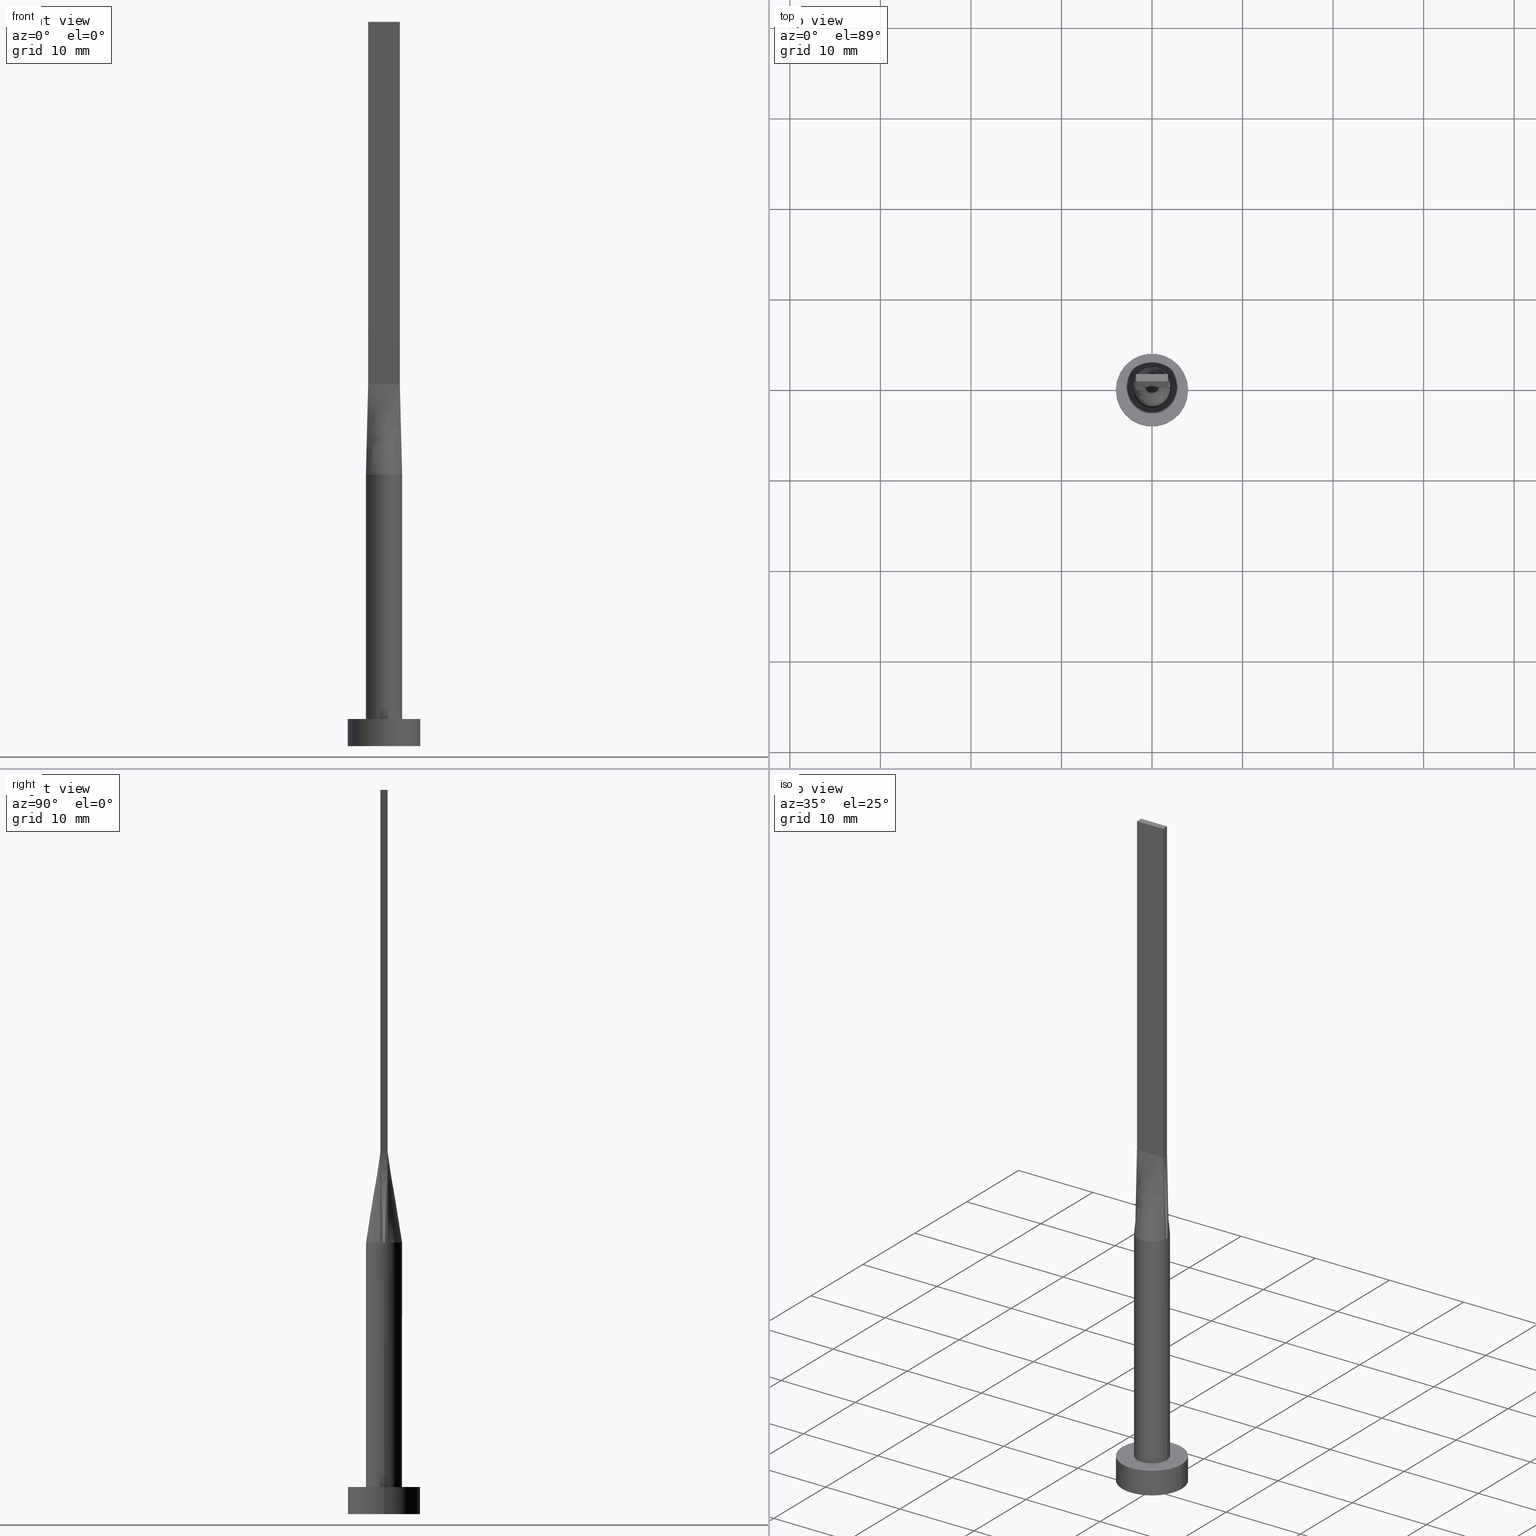
[diagram: canonical four-view strip — front | top / right | iso, engineering-drawing reading convention]
A machine part, canonical four-view strip (front | top / right | iso — engineering-drawing reading convention). The complete STEP part file that produces these views, byte-faithful:
ISO-10303-21;
HEADER;
FILE_DESCRIPTION (( 'STEP AP203' ),
    '1' );
FILE_NAME ('691f.STEP',
    '2026-02-12T09:07:20',
    ( '' ),
    ( '' ),
    'SwSTEP 2.0',
    'SolidWorks 2019',
    '' );
FILE_SCHEMA (( 'CONFIG_CONTROL_DESIGN' ));
ENDSEC;

DATA;
#1 = EDGE_CURVE ( 'NONE', #233, #190, #115, .T. ) ;
#2 = CARTESIAN_POINT ( 'NONE',  ( -1.949896596863728293, 0.4456908869437610776, 30.00000000000000000 ) ) ;
#3 = VERTEX_POINT ( 'NONE', #478 ) ;
#4 = PLANE ( 'NONE',  #78 ) ;
#5 = ORIENTED_EDGE ( 'NONE', *, *, #350, .F. ) ;
#6 = DIRECTION ( 'NONE',  ( 1.000000000000000000, 0.000000000000000000, -0.000000000000000000 ) ) ;
#7 = AXIS2_PLACEMENT_3D ( 'NONE', #482, #574, #221 ) ;
#8 = CC_DESIGN_APPROVAL ( #304, ( #397 ) ) ;
#9 = DIRECTION ( 'NONE',  ( -0.000000000000000000, -0.000000000000000000, -1.000000000000000000 ) ) ;
#10 = COORDINATED_UNIVERSAL_TIME_OFFSET ( 1, 0, .AHEAD. ) ;
#11 = FACE_OUTER_BOUND ( 'NONE', #65, .T. ) ;
#12 = DATE_AND_TIME ( #328, #223 ) ;
#13 = CC_DESIGN_PERSON_AND_ORGANIZATION_ASSIGNMENT ( #546, #272, ( #121 ) ) ;
#14 = DIRECTION ( 'NONE',  ( 1.000000000000000000, 0.000000000000000000, 0.000000000000000000 ) ) ;
#15 = DIRECTION ( 'NONE',  ( 0.000000000000000000, -0.000000000000000000, 1.000000000000000000 ) ) ;
#16 = CARTESIAN_POINT ( 'NONE',  ( 0.000000000000000000, 0.000000000000000000, 30.00000000000000000 ) ) ;
#17 = VERTEX_POINT ( 'NONE', #254 ) ;
#18 = CARTESIAN_POINT ( 'NONE',  ( 0.000000000000000000, 0.000000000000000000, 0.000000000000000000 ) ) ;
#19 = VECTOR ( 'NONE', #549, 1000.000000000000114 ) ;
#20 = CARTESIAN_POINT ( 'NONE',  ( 1.002818635501954603, 1.749193953526918088, 30.00000000000000000 ) ) ;
#21 = LOCAL_TIME ( 10, 7, 20.00000000000000000, #243 ) ;
#22 = FACE_OUTER_BOUND ( 'NONE', #33, .T. ) ;
#23 = DIRECTION ( 'NONE',  ( -0.000000000000000000, -0.000000000000000000, -1.000000000000000000 ) ) ;
#24 = EDGE_CURVE ( 'NONE', #323, #356, #30, .T. ) ;
#25 = EDGE_LOOP ( 'NONE', ( #476, #93, #238, #541 ) ) ;
#26 = CARTESIAN_POINT ( 'NONE',  ( 1.913513237607142647, 0.6040411209768705714, 30.00000000000000000 ) ) ;
#27 = DIRECTION ( 'NONE',  ( 0.000000000000000000, 0.000000000000000000, 1.000000000000000000 ) ) ;
#28 = ORIENTED_EDGE ( 'NONE', *, *, #528, .T. ) ;
#29 = VECTOR ( 'NONE', #430, 1000.000000000000000 ) ;
#30 = LINE ( 'NONE', #302, #47 ) ;
#31 = CARTESIAN_POINT ( 'NONE',  ( 0.000000000000000000, 0.000000000000000000, 30.00000000000000000 ) ) ;
#32 = VECTOR ( 'NONE', #524, 1000.000000000000000 ) ;
#33 = EDGE_LOOP ( 'NONE', ( #418, #218, #569, #448 ) ) ;
#34 = APPLICATION_CONTEXT ( 'configuration controlled 3d designs of mechanical parts and assemblies' ) ;
#35 = CARTESIAN_POINT ( 'NONE',  ( 1.669156890509896352, 1.119033439449084177, 29.99999999999999645 ) ) ;
#36 = EDGE_CURVE ( 'NONE', #190, #455, #249, .T. ) ;
#37 = ORIENTED_EDGE ( 'NONE', *, *, #307, .F. ) ;
#38 = LINE ( 'NONE', #571, #579 ) ;
#39 = VERTEX_POINT ( 'NONE', #339 ) ;
#40 = CARTESIAN_POINT ( 'NONE',  ( 4.000000000000000000, 4.898587196589412829E-16, 3.000000000000000000 ) ) ;
#41 = EDGE_CURVE ( 'NONE', #3, #222, #191, .T. ) ;
#42 = CARTESIAN_POINT ( 'NONE',  ( -1.749999999999999778, 0.4000000000000003553, 80.00000000000000000 ) ) ;
#43 = CARTESIAN_POINT ( 'NONE',  ( -0.1458333333333345638, -0.3999999999999997446, 40.00000000000000000 ) ) ;
#44 = ORIENTED_EDGE ( 'NONE', *, *, #540, .T. ) ;
#45 = CARTESIAN_POINT ( 'NONE',  ( -1.854458107241758746, 0.7741483657718513101, 30.00000000000000000 ) ) ;
#46 = CARTESIAN_POINT ( 'NONE',  ( 1.749999999999999778, 0.4000000000000003553, 40.00000000000000000 ) ) ;
#47 = VECTOR ( 'NONE', #467, 1000.000000000000000 ) ;
#48 = VECTOR ( 'NONE', #309, 1000.000000000000000 ) ;
#49 = DIRECTION ( 'NONE',  ( -0.000000000000000000, -0.000000000000000000, -1.000000000000000000 ) ) ;
#50 = DATE_AND_TIME ( #187, #21 ) ;
#51 = EDGE_CURVE ( 'NONE', #233, #39, #201, .T. ) ;
#52 = CARTESIAN_POINT ( 'NONE',  ( -1.166666666666667185, -0.3999999999999996891, 39.99999999999999289 ) ) ;
#53 = CARTESIAN_POINT ( 'NONE',  ( -4.000000000000000000, 0.000000000000000000, 3.000000000000000000 ) ) ;
#54 = EDGE_LOOP ( 'NONE', ( #327, #398, #37, #386, #494, #393 ) ) ;
#55 = CARTESIAN_POINT ( 'NONE',  ( 0.000000000000000000, 0.000000000000000000, 80.00000000000000000 ) ) ;
#56 = CARTESIAN_POINT ( 'NONE',  ( -1.750000000000000000, -0.3999999999999996891, 80.00000000000000000 ) ) ;
#57 = LINE ( 'NONE', #199, #165 ) ;
#58 = ADVANCED_FACE ( 'NONE', ( #330, #108 ), #558, .T. ) ;
#59 = ORIENTED_EDGE ( 'NONE', *, *, #273, .F. ) ;
#60 = LINE ( 'NONE', #109, #195 ) ;
#61 = EDGE_LOOP ( 'NONE', ( #143, #506 ) ) ;
#62 = CARTESIAN_POINT ( 'NONE',  ( -1.542259513637947999, 1.293837904363075442, 30.00000000000000355 ) ) ;
#63 = DATE_TIME_ROLE ( 'creation_date' ) ;
#64 = CARTESIAN_POINT ( 'NONE',  ( -1.749999999999999778, 0.4000000000000003553, 40.00000000000000000 ) ) ;
#65 = EDGE_LOOP ( 'NONE', ( #155, #522, #460, #411 ) ) ;
#66 = CYLINDRICAL_SURFACE ( 'NONE', #502, 2.000000000000000000 ) ;
#67 = DIRECTION ( 'NONE',  ( 0.000000000000000000, 0.000000000000000000, 1.000000000000000000 ) ) ;
#68 = EDGE_CURVE ( 'NONE', #220, #233, #107, .T. ) ;
#69 = ORIENTED_EDGE ( 'NONE', *, *, #572, .T. ) ;
#70 = CARTESIAN_POINT ( 'NONE',  ( 1.669156890509896574, -1.119033439449083733, 30.00000000000000000 ) ) ;
#71 = VERTEX_POINT ( 'NONE', #421 ) ;
#72 = DIRECTION ( 'NONE',  ( 0.01996751149463110026, -0.004564002627344216668, 0.9997902121768992290 ) ) ;
#73 = PERSON_AND_ORGANIZATION ( #548, #283 ) ;
#74 = CARTESIAN_POINT ( 'NONE',  ( -0.5833333333333340365, 0.4000000000000004108, 39.99999999999999289 ) ) ;
#75 = CARTESIAN_POINT ( 'NONE',  ( 0.5307032259479425029, -1.945168061822314831, 30.00000000000000355 ) ) ;
#76 = PLANE ( 'NONE',  #214 ) ;
#77 = ADVANCED_FACE ( 'NONE', ( #22 ), #261, .T. ) ;
#78 = AXIS2_PLACEMENT_3D ( 'NONE', #359, #181, #447 ) ;
#79 = DIRECTION ( 'NONE',  ( 0.000000000000000000, 0.000000000000000000, 1.000000000000000000 ) ) ;
#80 = PLANE ( 'NONE',  #125 ) ;
#81 = EDGE_CURVE ( 'NONE', #222, #3, #114, .T. ) ;
#82 = AXIS2_PLACEMENT_3D ( 'NONE', #31, #27, #210 ) ;
#83 = CARTESIAN_POINT ( 'NONE',  ( 1.002818635501954603, 1.749193953526918088, 30.00000000000000000 ) ) ;
#84 = AXIS2_PLACEMENT_3D ( 'NONE', #389, #269, #435 ) ;
#85 = DIRECTION ( 'NONE',  ( -2.710505431213761085E-16, 1.000000000000000000, -0.000000000000000000 ) ) ;
#86 = FACE_OUTER_BOUND ( 'NONE', #378, .T. ) ;
#87 = APPLICATION_CONTEXT ( 'configuration controlled 3d designs of mechanical parts and assemblies' ) ;
#88 = DIRECTION ( 'NONE',  ( -1.000000000000000000, -2.710505431213761085E-16, 0.000000000000000000 ) ) ;
#89 = CARTESIAN_POINT ( 'NONE',  ( -0.5307032259479425029, -1.945168061822315275, 30.00000000000000355 ) ) ;
#90 = ORIENTED_EDGE ( 'NONE', *, *, #98, .T. ) ;
#91 = DIRECTION ( 'NONE',  ( -0.000000000000000000, -0.000000000000000000, -1.000000000000000000 ) ) ;
#92 = CARTESIAN_POINT ( 'NONE',  ( -1.949896596863728293, 0.4456908869437610776, 30.00000000000000000 ) ) ;
#93 = ORIENTED_EDGE ( 'NONE', *, *, #167, .T. ) ;
#94 = PERSON_AND_ORGANIZATION_ROLE ( 'creator' ) ;
#95 = CARTESIAN_POINT ( 'NONE',  ( -1.913513237607142425, -0.6040411209768705714, 30.00000000000000000 ) ) ;
#96 = FACE_OUTER_BOUND ( 'NONE', #464, .T. ) ;
#97 = PERSON_AND_ORGANIZATION ( #548, #283 ) ;
#98 = EDGE_CURVE ( 'NONE', #498, #519, #265, .T. ) ;
#99 = CARTESIAN_POINT ( 'NONE',  ( 1.749999999999999778, -0.2666666666666663299, 39.99999999999999289 ) ) ;
#100 = ORIENTED_EDGE ( 'NONE', *, *, #1, .T. ) ;
#101 =( NAMED_UNIT ( * ) SI_UNIT ( $, .STERADIAN. ) SOLID_ANGLE_UNIT ( ) );
#102 = CARTESIAN_POINT ( 'NONE',  ( 0.000000000000000000, 0.000000000000000000, 3.000000000000000000 ) ) ;
#103 = PRODUCT_DEFINITION_FORMATION_WITH_SPECIFIED_SOURCE ( 'LIBOVOLN�', '', #256, .NOT_KNOWN. ) ;
#104 = FACE_OUTER_BOUND ( 'NONE', #54, .T. ) ;
#105 = CARTESIAN_POINT ( 'NONE',  ( -0.7291666666666672958, 0.4000000000000004108, 39.99999999999999289 ) ) ;
#106 = DIRECTION ( 'NONE',  ( 0.000000000000000000, 0.000000000000000000, 1.000000000000000000 ) ) ;
#107 = LINE ( 'NONE', #213, #137 ) ;
#108 = FACE_OUTER_BOUND ( 'NONE', #61, .T. ) ;
#109 = CARTESIAN_POINT ( 'NONE',  ( 2.000000000000000000, 2.449293598294706414E-16, 30.00000000000000000 ) ) ;
#110 = CARTESIAN_POINT ( 'NONE',  ( 0.000000000000000000, 0.000000000000000000, 30.00000000000000000 ) ) ;
#111 = EDGE_CURVE ( 'NONE', #360, #220, #326, .T. ) ;
#112 = ORIENTED_EDGE ( 'NONE', *, *, #521, .T. ) ;
#113 = CARTESIAN_POINT ( 'NONE',  ( -1.002818635501954381, 1.749193953526918532, 30.00000000000000000 ) ) ;
#114 = CIRCLE ( 'NONE', #518, 4.000000000000000000 ) ;
#115 = LINE ( 'NONE', #566, #29 ) ;
#116 = CARTESIAN_POINT ( 'NONE',  ( 0.5307032259479425029, 1.945168061822314165, 30.00000000000000000 ) ) ;
#117 = CARTESIAN_POINT ( 'NONE',  ( 0.1458333333333321213, -0.3999999999999997446, 39.99999999999999289 ) ) ;
#118 = ORIENTED_EDGE ( 'NONE', *, *, #111, .T. ) ;
#119 = CARTESIAN_POINT ( 'NONE',  ( -0.5307032259479420588, 1.945168061822314609, 30.00000000000000000 ) ) ;
#120 = APPROVAL_DATE_TIME ( #123, #304 ) ;
#121 = PRODUCT_DEFINITION ( 'NEZN�M�', '', #103, #473 ) ;
#122 = CARTESIAN_POINT ( 'NONE',  ( 1.749999999999999778, 0.4000000000000003553, 80.00000000000000000 ) ) ;
#123 = DATE_AND_TIME ( #253, #429 ) ;
#124 = CARTESIAN_POINT ( 'NONE',  ( 0.000000000000000000, 0.000000000000000000, 3.000000000000000000 ) ) ;
#125 = AXIS2_PLACEMENT_3D ( 'NONE', #122, #127, #179 ) ;
#126 = APPROVAL_PERSON_ORGANIZATION ( #501, #485, #399 ) ;
#127 = DIRECTION ( 'NONE',  ( 0.000000000000000000, -1.000000000000000000, 0.000000000000000000 ) ) ;
#128 = CC_DESIGN_DATE_AND_TIME_ASSIGNMENT ( #495, #63, ( #121 ) ) ;
#129 = CARTESIAN_POINT ( 'NONE',  ( 1.209404336647714073, 1.609323485403446830, 30.00000000000001066 ) ) ;
#130 = DIRECTION ( 'NONE',  ( 1.000000000000000000, -2.710505431213761085E-16, 0.000000000000000000 ) ) ;
#131 = CARTESIAN_POINT ( 'NONE',  ( -1.749999999999999778, -0.1333333333333329429, 39.99999999999999289 ) ) ;
#132 = CC_DESIGN_PERSON_AND_ORGANIZATION_ASSIGNMENT ( #508, #234, ( #256 ) ) ;
#133 = CARTESIAN_POINT ( 'NONE',  ( -1.750000000000000000, -0.3999999999999996891, 40.00000000000000000 ) ) ;
#134 = ORIENTED_EDGE ( 'NONE', *, *, #1, .F. ) ;
#135 =( NAMED_UNIT ( * ) PLANE_ANGLE_UNIT ( ) SI_UNIT ( $, .RADIAN. ) );
#136 = CARTESIAN_POINT ( 'NONE',  ( 1.982817607920046798, -0.3008345008579155211, 30.00000000000000000 ) ) ;
#137 = VECTOR ( 'NONE', #466, 1000.000000000000000 ) ;
#138 = EDGE_LOOP ( 'NONE', ( #112, #118, #563, #100 ) ) ;
#139 = VECTOR ( 'NONE', #9, 1000.000000000000000 ) ;
#140 = AXIS2_PLACEMENT_3D ( 'NONE', #189, #49, #396 ) ;
#141 = CC_DESIGN_APPROVAL ( #555, ( #121 ) ) ;
#142 = CARTESIAN_POINT ( 'NONE',  ( 1.949717013143734690, -0.4456496030042819689, 30.00000000000000000 ) ) ;
#143 = ORIENTED_EDGE ( 'NONE', *, *, #41, .T. ) ;
#144 = EDGE_CURVE ( 'NONE', #423, #323, #452, .T. ) ;
#145 = DIRECTION ( 'NONE',  ( 2.710505431213761085E-16, -1.000000000000000000, 0.000000000000000000 ) ) ;
#146 = CARTESIAN_POINT ( 'NONE',  ( -1.002818635501955047, -1.749193953526917866, 30.00000000000000355 ) ) ;
#147 = CARTESIAN_POINT ( 'NONE',  ( 0.000000000000000000, 0.000000000000000000, 0.000000000000000000 ) ) ;
#148 = PLANE ( 'NONE',  #483 ) ;
#149 = CARTESIAN_POINT ( 'NONE',  ( 1.749999999999999778, 0.4000000000000003553, 80.00000000000000000 ) ) ;
#150 = EDGE_LOOP ( 'NONE', ( #349, #262, #329, #334 ) ) ;
#151 = MECHANICAL_CONTEXT ( 'NONE', #34, 'mechanical' ) ;
#152 = DIRECTION ( 'NONE',  ( -0.000000000000000000, -0.000000000000000000, -1.000000000000000000 ) ) ;
#153 = CARTESIAN_POINT ( 'NONE',  ( 0.000000000000000000, 0.000000000000000000, 0.000000000000000000 ) ) ;
#154 = CARTESIAN_POINT ( 'NONE',  ( 1.020833333333332371, -0.3999999999999997446, 39.99999999999999289 ) ) ;
#155 = ORIENTED_EDGE ( 'NONE', *, *, #385, .T. ) ;
#156 = CARTESIAN_POINT ( 'NONE',  ( 1.949877516600953875, 0.4456865912299994847, 30.00000000000000000 ) ) ;
#157 = ORIENTED_EDGE ( 'NONE', *, *, #41, .F. ) ;
#158 = CARTESIAN_POINT ( 'NONE',  ( -1.749999999999999778, 0.4000000000000003553, 80.00000000000000000 ) ) ;
#159 = CARTESIAN_POINT ( 'NONE',  ( -1.949717013143734690, -0.4456496030042821355, 30.00000000000000000 ) ) ;
#160 = CARTESIAN_POINT ( 'NONE',  ( 1.749999999999999778, 0.4000000000000003553, 80.00000000000000000 ) ) ;
#161 = ORIENTED_EDGE ( 'NONE', *, *, #496, .T. ) ;
#162 = CARTESIAN_POINT ( 'NONE',  ( 1.166666666666665630, 0.4000000000000003553, 39.99999999999999289 ) ) ;
#163 = ORIENTED_EDGE ( 'NONE', *, *, #324, .F. ) ;
#164 = CIRCLE ( 'NONE', #295, 4.000000000000000000 ) ;
#165 = VECTOR ( 'NONE', #368, 1000.000000000000000 ) ;
#166 = CARTESIAN_POINT ( 'NONE',  ( 1.542259513637948443, 1.293837904363074998, 30.00000000000000711 ) ) ;
#167 = EDGE_CURVE ( 'NONE', #423, #525, #463, .T. ) ;
#168 = ORIENTED_EDGE ( 'NONE', *, *, #367, .F. ) ;
#169 = CARTESIAN_POINT ( 'NONE',  ( -0.2657394870669756437, 1.999999999999999556, 30.00000000000000000 ) ) ;
#170 = DIRECTION ( 'NONE',  ( 0.000000000000000000, 0.000000000000000000, 1.000000000000000000 ) ) ;
#171 = ORIENTED_EDGE ( 'NONE', *, *, #51, .T. ) ;
#172 = ADVANCED_FACE ( 'NONE', ( #291 ), #66, .T. ) ;
#173 = CARTESIAN_POINT ( 'NONE',  ( -1.002818635501954381, 1.749193953526918532, 30.00000000000000000 ) ) ;
#174 = CIRCLE ( 'NONE', #353, 2.000000000000000000 ) ;
#175 = ORIENTED_EDGE ( 'NONE', *, *, #391, .T. ) ;
#176 = VECTOR ( 'NONE', #91, 1000.000000000000000 ) ;
#177 = CARTESIAN_POINT ( 'NONE',  ( 1.949877516600953875, 0.4456865912299994847, 30.00000000000000000 ) ) ;
#178 = CARTESIAN_POINT ( 'NONE',  ( -0.2657394870669760878, -2.000000000000000000, 30.00000000000000355 ) ) ;
#179 = DIRECTION ( 'NONE',  ( 0.000000000000000000, -0.000000000000000000, -1.000000000000000000 ) ) ;
#180 = CIRCLE ( 'NONE', #182, 2.000000000000000000 ) ;
#181 = DIRECTION ( 'NONE',  ( 0.000000000000000000, 0.000000000000000000, 1.000000000000000000 ) ) ;
#182 = AXIS2_PLACEMENT_3D ( 'NONE', #562, #461, #419 ) ;
#183 = CC_DESIGN_APPROVAL ( #485, ( #103 ) ) ;
#184 = EDGE_CURVE ( 'NONE', #519, #550, #180, .T. ) ;
#185 = CARTESIAN_POINT ( 'NONE',  ( -1.999367905308203186, 0.1504172504289580936, 30.00000000000000000 ) ) ;
#186 = ORIENTED_EDGE ( 'NONE', *, *, #144, .F. ) ;
#187 = CALENDAR_DATE ( 2026, 12, 2 ) ;
#188 = CARTESIAN_POINT ( 'NONE',  ( -1.604166666666666963, -0.3999999999999996891, 39.99999999999999289 ) ) ;
#189 = CARTESIAN_POINT ( 'NONE',  ( 0.000000000000000000, 0.000000000000000000, 3.000000000000000000 ) ) ;
#190 = VERTEX_POINT ( 'NONE', #149 ) ;
#191 = CIRCLE ( 'NONE', #380, 4.000000000000000000 ) ;
#192 = CARTESIAN_POINT ( 'NONE',  ( 4.000000000000000000, 4.898587196589412829E-16, 0.000000000000000000 ) ) ;
#193 = CLOSED_SHELL ( 'NONE', ( #172, #344, #427, #58, #375, #480, #77, #434, #408, #211, #294, #236, #533, #442, #577 ) ) ;
#194 = ORIENTED_EDGE ( 'NONE', *, *, #572, .F. ) ;
#195 = VECTOR ( 'NONE', #244, 1000.000000000000000 ) ;
#196 = CARTESIAN_POINT ( 'NONE',  ( -1.949717013143734690, -0.4456496030042821355, 30.00000000000000000 ) ) ;
#197 = EDGE_LOOP ( 'NONE', ( #90, #433, #559, #530, #474 ) ) ;
#198 = SECURITY_CLASSIFICATION_LEVEL ( 'unclassified' ) ;
#199 = CARTESIAN_POINT ( 'NONE',  ( -1.749999999999999778, 0.4000000000000003553, 40.00000000000000000 ) ) ;
#200 = CARTESIAN_POINT ( 'NONE',  ( 4.000000000000000000, 4.898587196589412829E-16, 3.000000000000000000 ) ) ;
#201 = LINE ( 'NONE', #554, #228 ) ;
#202 = DIRECTION ( 'NONE',  ( -0.000000000000000000, -0.000000000000000000, -1.000000000000000000 ) ) ;
#203 = CARTESIAN_POINT ( 'NONE',  ( 1.209404336647714073, 1.609323485403446830, 30.00000000000001066 ) ) ;
#204 = PRODUCT_RELATED_PRODUCT_CATEGORY ( 'detail', '', ( #256 ) ) ;
#205 = APPROVAL_PERSON_ORGANIZATION ( #73, #304, #420 ) ;
#206 = CARTESIAN_POINT ( 'NONE',  ( -4.000000000000000000, 0.000000000000000000, 0.000000000000000000 ) ) ;
#207 = CARTESIAN_POINT ( 'NONE',  ( -0.1458333333333341753, 0.4000000000000004108, 39.99999999999999289 ) ) ;
#208 = SHAPE_DEFINITION_REPRESENTATION ( #553, #517 ) ;
#209 = CARTESIAN_POINT ( 'NONE',  ( 1.166666666666665853, -0.3999999999999997446, 39.99999999999999289 ) ) ;
#210 = DIRECTION ( 'NONE',  ( 1.000000000000000000, -9.769962616701377556E-15, 0.000000000000000000 ) ) ;
#211 = ADVANCED_FACE ( 'NONE', ( #468 ), #300, .T. ) ;
#212 = AXIS2_PLACEMENT_3D ( 'NONE', #110, #513, #426 ) ;
#213 = CARTESIAN_POINT ( 'NONE',  ( -1.750000000000000000, -0.3999999999999996891, 80.00000000000000000 ) ) ;
#214 = AXIS2_PLACEMENT_3D ( 'NONE', #345, #130, #432 ) ;
#215 = DIRECTION ( 'NONE',  ( 0.000000000000000000, 0.000000000000000000, 1.000000000000000000 ) ) ;
#216 = CARTESIAN_POINT ( 'NONE',  ( -1.542259513637947999, 1.293837904363075442, 30.00000000000000355 ) ) ;
#217 = ORIENTED_EDGE ( 'NONE', *, *, #81, .F. ) ;
#218 = ORIENTED_EDGE ( 'NONE', *, *, #400, .T. ) ;
#219 = CARTESIAN_POINT ( 'NONE',  ( 1.750000000000000000, -0.3999999999999996891, 80.00000000000000000 ) ) ;
#220 = VERTEX_POINT ( 'NONE', #531 ) ;
#221 = DIRECTION ( 'NONE',  ( 1.000000000000000000, 0.000000000000000000, 0.000000000000000000 ) ) ;
#222 = VERTEX_POINT ( 'NONE', #40 ) ;
#223 = LOCAL_TIME ( 10, 7, 20.00000000000000000, #10 ) ;
#224 = CARTESIAN_POINT ( 'NONE',  ( -1.458333333333333703, 0.4000000000000004108, 39.99999999999999289 ) ) ;
#225 = ORIENTED_EDGE ( 'NONE', *, *, #184, .F. ) ;
#226 = CYLINDRICAL_SURFACE ( 'NONE', #140, 4.000000000000000000 ) ;
#227 = EDGE_CURVE ( 'NONE', #356, #71, #174, .T. ) ;
#228 = VECTOR ( 'NONE', #152, 1000.000000000000000 ) ;
#229 = LINE ( 'NONE', #56, #139 ) ;
#230 = B_SPLINE_CURVE_WITH_KNOTS ( 'NONE', 3,
 ( #177, #439, #573, #35, #347, #129, #83, #383, #570, #169, #299, #173, #475, #216, #387, #443, #278, #92 ),
 .UNSPECIFIED., .F., .F.,
 ( 4, 2, 2, 2, 2, 2, 2, 2, 4 ),
 ( 0.000000000000000000, 0.1250000000000000000, 0.2500000000000000000, 0.3750000000000000000, 0.5000000000000000000, 0.6250000000000000000, 0.7500000000000000000, 0.8750000000000000000, 1.000000000000000000 ),
 .UNSPECIFIED. ) ;
#231 = CARTESIAN_POINT ( 'NONE',  ( -1.749999999999999778, 0.4000000000000003553, 80.00000000000000000 ) ) ;
#232 = CARTESIAN_POINT ( 'NONE',  ( -0.2916666666666679619, -0.3999999999999997446, 39.99999999999999289 ) ) ;
#233 = VERTEX_POINT ( 'NONE', #219 ) ;
#234 = PERSON_AND_ORGANIZATION_ROLE ( 'design_owner' ) ;
#235 = CARTESIAN_POINT ( 'NONE',  ( -1.020833333333334147, -0.3999999999999997446, 39.99999999999999289 ) ) ;
#236 = ADVANCED_FACE ( 'NONE', ( #259 ), #76, .F. ) ;
#237 = CARTESIAN_POINT ( 'NONE',  ( 1.849858506571867345, -0.4228248015021406347, 35.00000000000000000 ) ) ;
#238 = ORIENTED_EDGE ( 'NONE', *, *, #565, .F. ) ;
#239 = CARTESIAN_POINT ( 'NONE',  ( -1.749999999999999778, -0.2666666666666662744, 39.99999999999999289 ) ) ;
#240 = CIRCLE ( 'NONE', #568, 4.000000000000000000 ) ;
#241 = LOCAL_TIME ( 10, 7, 20.00000000000000000, #491 ) ;
#242 = CARTESIAN_POINT ( 'NONE',  ( 1.849858506571867123, 0.4228248015021409678, 35.00000000000000000 ) ) ;
#243 = COORDINATED_UNIVERSAL_TIME_OFFSET ( 1, 0, .AHEAD. ) ;
#244 = DIRECTION ( 'NONE',  ( -0.000000000000000000, -0.000000000000000000, -1.000000000000000000 ) ) ;
#245 = DIRECTION ( 'NONE',  ( -0.000000000000000000, -0.000000000000000000, -1.000000000000000000 ) ) ;
#246 = CC_DESIGN_PERSON_AND_ORGANIZATION_ASSIGNMENT ( #97, #279, ( #397 ) ) ;
#247 = DIRECTION ( 'NONE',  ( 0.000000000000000000, 0.000000000000000000, 1.000000000000000000 ) ) ;
#248 = CARTESIAN_POINT ( 'NONE',  ( 1.020833333333332371, 0.4000000000000004108, 39.99999999999999289 ) ) ;
#249 = LINE ( 'NONE', #160, #390 ) ;
#250 = CARTESIAN_POINT ( 'NONE',  ( -1.849858506571867123, 0.4228248015021412454, 35.00000000000000000 ) ) ;
#251 = B_SPLINE_SURFACE_WITH_KNOTS ( 'NONE', 3, 1, ( 
 ( #142, #270 ),
 ( #136, #99 ),
 ( #493, #453 ),
 ( #536, #580 ),
 ( #310, #407 ),
 ( #441, #46 ) ),
 .UNSPECIFIED., .F., .F., .F.,
 ( 4, 2, 4 ),
 ( 2, 2 ),
 ( 0.000000000000000000, 0.5000000000000000000, 1.000000000000000000 ),
 ( 0.000000000000000000, 1.000000000000000000 ),
 .UNSPECIFIED. ) ;
#252 = CARTESIAN_POINT ( 'NONE',  ( 0.2916666666666656860, 0.4000000000000004108, 39.99999999999999289 ) ) ;
#253 = CALENDAR_DATE ( 2026, 12, 2 ) ;
#254 = CARTESIAN_POINT ( 'NONE',  ( -1.750000000000000000, -0.3999999999999996891, 40.00000000000000000 ) ) ;
#255 = CARTESIAN_POINT ( 'NONE',  ( 1.750000000000000000, -0.3999999999999996891, 40.00000000000000000 ) ) ;
#256 = PRODUCT ( '691f', '691f', '', ( #151 ) ) ;
#257 = VECTOR ( 'NONE', #351, 1000.000000000000000 ) ;
#258 = LOCAL_TIME ( 10, 7, 20.00000000000000000, #369 ) ;
#259 = FACE_OUTER_BOUND ( 'NONE', #537, .T. ) ;
#260 = CARTESIAN_POINT ( 'NONE',  ( -1.913513237607142647, 0.6040411209768712375, 30.00000000000000355 ) ) ;
#261 = B_SPLINE_SURFACE_WITH_KNOTS ( 'NONE', 3, 1, ( 
 ( #159, #337 ),
 ( #95, #188 ),
 ( #274, #538 ),
 ( #446, #52 ),
 ( #542, #235 ),
 ( #515, #462 ),
 ( #146, #489 ),
 ( #89, #232 ),
 ( #178, #43 ),
 ( #348, #117 ),
 ( #75, #440 ),
 ( #487, #510 ),
 ( #516, #471 ),
 ( #424, #154 ),
 ( #70, #209 ),
 ( #377, #557 ),
 ( #551, #287 ),
 ( #296, #255 ) ),
 .UNSPECIFIED., .F., .F., .F.,
 ( 4, 2, 2, 2, 2, 2, 2, 2, 4 ),
 ( 2, 2 ),
 ( 0.000000000000000000, 0.1250000000000000000, 0.2500000000000000000, 0.3750000000000000000, 0.5000000000000000000, 0.6250000000000000000, 0.7500000000000000000, 0.8750000000000000000, 1.000000000000000000 ),
 ( 0.000000000000000000, 1.000000000000000000 ),
 .UNSPECIFIED. ) ;
#262 = ORIENTED_EDGE ( 'NONE', *, *, #263, .F. ) ;
#263 = EDGE_CURVE ( 'NONE', #360, #525, #438, .T. ) ;
#264 = CARTESIAN_POINT ( 'NONE',  ( 0.000000000000000000, 0.000000000000000000, 30.00000000000000000 ) ) ;
#265 = CIRCLE ( 'NONE', #82, 2.000000000000000000 ) ;
#266 = AXIS2_PLACEMENT_3D ( 'NONE', #264, #481, #394 ) ;
#267 = CYLINDRICAL_SURFACE ( 'NONE', #84, 4.000000000000000000 ) ;
#268 = EDGE_CURVE ( 'NONE', #323, #333, #492, .T. ) ;
#269 = DIRECTION ( 'NONE',  ( -0.000000000000000000, -0.000000000000000000, -1.000000000000000000 ) ) ;
#270 = CARTESIAN_POINT ( 'NONE',  ( 1.750000000000000000, -0.3999999999999996891, 40.00000000000000000 ) ) ;
#271 = DIRECTION ( 'NONE',  ( -0.01996751149463110026, -0.004564002627344275649, -0.9997902121768992290 ) ) ;
#272 = PERSON_AND_ORGANIZATION_ROLE ( 'creator' ) ;
#273 = EDGE_CURVE ( 'NONE', #525, #17, #576, .T. ) ;
#274 = CARTESIAN_POINT ( 'NONE',  ( -1.854458107241759190, -0.7741483657718508660, 30.00000000000000355 ) ) ;
#275 = CARTESIAN_POINT ( 'NONE',  ( -1.849858506571867345, -0.4228248015021409678, 35.00000000000000000 ) ) ;
#276 = ORIENTED_EDGE ( 'NONE', *, *, #144, .T. ) ;
#277 = APPROVAL_DATE_TIME ( #50, #485 ) ;
#278 = CARTESIAN_POINT ( 'NONE',  ( -1.913513237607142647, 0.6040411209768712375, 30.00000000000000355 ) ) ;
#279 = PERSON_AND_ORGANIZATION_ROLE ( 'classification_officer' ) ;
#280 = CARTESIAN_POINT ( 'NONE',  ( 1.749999999999999778, 0.4000000000000003553, 40.00000000000000000 ) ) ;
#281 = ORIENTED_EDGE ( 'NONE', *, *, #36, .F. ) ;
#282 = CALENDAR_DATE ( 2026, 12, 2 ) ;
#283 = ORGANIZATION ( 'NEUR�EN�', 'NEUR�EN�', '' ) ;
#284 = DIRECTION ( 'NONE',  ( 0.000000000000000000, 0.000000000000000000, 1.000000000000000000 ) ) ;
#285 = DIRECTION ( 'NONE',  ( 0.000000000000000000, 0.000000000000000000, 1.000000000000000000 ) ) ;
#286 = CC_DESIGN_PERSON_AND_ORGANIZATION_ASSIGNMENT ( #449, #94, ( #103 ) ) ;
#287 = CARTESIAN_POINT ( 'NONE',  ( 1.604166666666666519, -0.3999999999999997446, 39.99999999999999289 ) ) ;
#288 = APPROVAL_DATE_TIME ( #361, #555 ) ;
#289 = CARTESIAN_POINT ( 'NONE',  ( 1.949907982895221048, -0.4456935569447296186, 30.00000000000000000 ) ) ;
#290 = ORIENTED_EDGE ( 'NONE', *, *, #324, .T. ) ;
#291 = FACE_OUTER_BOUND ( 'NONE', #581, .T. ) ;
#292 = CARTESIAN_POINT ( 'NONE',  ( 0.000000000000000000, 0.000000000000000000, 3.000000000000000000 ) ) ;
#293 = CARTESIAN_POINT ( 'NONE',  ( 1.949717013143734468, 0.4456496030042822465, 30.00000000000000000 ) ) ;
#294 = ADVANCED_FACE ( 'NONE', ( #303 ), #80, .F. ) ;
#295 = AXIS2_PLACEMENT_3D ( 'NONE', #153, #285, #412 ) ;
#296 = CARTESIAN_POINT ( 'NONE',  ( 1.949717013143734690, -0.4456496030042815248, 30.00000000000000000 ) ) ;
#297 = CARTESIAN_POINT ( 'NONE',  ( -0.2916666666666674623, 0.4000000000000004108, 39.99999999999999289 ) ) ;
#298 = ORIENTED_EDGE ( 'NONE', *, *, #268, .T. ) ;
#299 = CARTESIAN_POINT ( 'NONE',  ( -0.5307032259479420588, 1.945168061822314609, 30.00000000000000000 ) ) ;
#300 = B_SPLINE_SURFACE_WITH_KNOTS ( 'NONE', 3, 1, ( 
 ( #293, #422 ),
 ( #26, #564 ),
 ( #520, #338 ),
 ( #505, #162 ),
 ( #166, #248 ),
 ( #203, #415 ),
 ( #20, #335 ),
 ( #116, #252 ),
 ( #381, #514 ),
 ( #340, #207 ),
 ( #119, #297 ),
 ( #113, #74 ),
 ( #458, #105 ),
 ( #62, #371 ),
 ( #526, #346 ),
 ( #45, #224 ),
 ( #260, #306 ),
 ( #341, #308 ) ),
 .UNSPECIFIED., .F., .F., .F.,
 ( 4, 2, 2, 2, 2, 2, 2, 2, 4 ),
 ( 2, 2 ),
 ( 0.000000000000000000, 0.1250000000000000000, 0.2500000000000000000, 0.3750000000000000000, 0.5000000000000000000, 0.6250000000000000000, 0.7500000000000000000, 0.8750000000000000000, 1.000000000000000000 ),
 ( 0.000000000000000000, 1.000000000000000000 ),
 .UNSPECIFIED. ) ;
#301 =( GEOMETRIC_REPRESENTATION_CONTEXT ( 3 ) GLOBAL_UNCERTAINTY_ASSIGNED_CONTEXT ( ( #575 ) ) GLOBAL_UNIT_ASSIGNED_CONTEXT ( ( #319, #135, #101 ) ) REPRESENTATION_CONTEXT ( 'NONE', 'WORKASPACE' ) );
#302 = CARTESIAN_POINT ( 'NONE',  ( -2.000000000000000000, 0.000000000000000000, 30.00000000000000000 ) ) ;
#303 = FACE_OUTER_BOUND ( 'NONE', #150, .T. ) ;
#304 = APPROVAL ( #342, 'NEUR�EN�' ) ;
#305 = DIRECTION ( 'NONE',  ( 1.000000000000000000, 0.000000000000000000, 0.000000000000000000 ) ) ;
#306 = CARTESIAN_POINT ( 'NONE',  ( -1.604166666666666741, 0.4000000000000004108, 39.99999999999999289 ) ) ;
#307 = EDGE_CURVE ( 'NONE', #333, #498, #543, .T. ) ;
#308 = CARTESIAN_POINT ( 'NONE',  ( -1.749999999999999778, 0.4000000000000003553, 40.00000000000000000 ) ) ;
#309 = DIRECTION ( 'NONE',  ( -0.000000000000000000, -0.000000000000000000, -1.000000000000000000 ) ) ;
#310 = CARTESIAN_POINT ( 'NONE',  ( 1.982817607920046798, 0.3008345008579150770, 30.00000000000000000 ) ) ;
#311 = MANIFOLD_SOLID_BREP ( 'P�idat vysunut�m5', #193 ) ;
#312 = PERSON_AND_ORGANIZATION ( #548, #283 ) ;
#313 = FACE_OUTER_BOUND ( 'NONE', #388, .T. ) ;
#314 = ORIENTED_EDGE ( 'NONE', *, *, #450, .F. ) ;
#315 = CIRCLE ( 'NONE', #504, 2.000000000000000000 ) ;
#316 = APPLICATION_PROTOCOL_DEFINITION ( 'international standard', 'config_control_design', 1994, #34 ) ;
#317 = DIRECTION ( 'NONE',  ( 1.000000000000000000, 0.000000000000000000, 0.000000000000000000 ) ) ;
#318 = ORIENTED_EDGE ( 'NONE', *, *, #336, .T. ) ;
#319 =( LENGTH_UNIT ( ) NAMED_UNIT ( * ) SI_UNIT ( .MILLI., .METRE. ) );
#320 = LINE ( 'NONE', #275, #372 ) ;
#321 = ORIENTED_EDGE ( 'NONE', *, *, #263, .T. ) ;
#322 = CALENDAR_DATE ( 2026, 12, 2 ) ;
#323 = VERTEX_POINT ( 'NONE', #392 ) ;
#324 = EDGE_CURVE ( 'NONE', #71, #356, #315, .T. ) ;
#325 = LINE ( 'NONE', #200, #176 ) ;
#326 = LINE ( 'NONE', #158, #352 ) ;
#327 = ORIENTED_EDGE ( 'NONE', *, *, #528, .F. ) ;
#328 = CALENDAR_DATE ( 2026, 12, 2 ) ;
#329 = ORIENTED_EDGE ( 'NONE', *, *, #521, .F. ) ;
#330 = FACE_BOUND ( 'NONE', #444, .T. ) ;
#331 = CARTESIAN_POINT ( 'NONE',  ( 1.999683952654101260, 4.637163118916083254E-16, 30.00000000000000000 ) ) ;
#332 = DIRECTION ( 'NONE',  ( 1.000000000000000000, 0.000000000000000000, 0.000000000000000000 ) ) ;
#333 = VERTEX_POINT ( 'NONE', #529 ) ;
#334 = ORIENTED_EDGE ( 'NONE', *, *, #36, .T. ) ;
#335 = CARTESIAN_POINT ( 'NONE',  ( 0.5833333333333323711, 0.4000000000000004108, 39.99999999999999289 ) ) ;
#336 = EDGE_CURVE ( 'NONE', #39, #455, #38, .T. ) ;
#337 = CARTESIAN_POINT ( 'NONE',  ( -1.750000000000000000, -0.3999999999999996891, 40.00000000000000000 ) ) ;
#338 = CARTESIAN_POINT ( 'NONE',  ( 1.458333333333332371, 0.4000000000000003553, 39.99999999999999289 ) ) ;
#339 = CARTESIAN_POINT ( 'NONE',  ( 1.750000000000000000, -0.3999999999999996891, 40.00000000000000000 ) ) ;
#340 = CARTESIAN_POINT ( 'NONE',  ( -0.2657394870669756437, 1.999999999999999556, 30.00000000000000000 ) ) ;
#341 = CARTESIAN_POINT ( 'NONE',  ( -1.949717013143734468, 0.4456496030042821910, 30.00000000000000000 ) ) ;
#342 = APPROVAL_STATUS ( 'not_yet_approved' ) ;
#343 = ORIENTED_EDGE ( 'NONE', *, *, #111, .F. ) ;
#344 = ADVANCED_FACE ( 'NONE', ( #431 ), #267, .T. ) ;
#345 = CARTESIAN_POINT ( 'NONE',  ( -1.749999999999999778, 0.4000000000000003553, 80.00000000000000000 ) ) ;
#346 = CARTESIAN_POINT ( 'NONE',  ( -1.166666666666666963, 0.4000000000000004108, 39.99999999999999289 ) ) ;
#347 = CARTESIAN_POINT ( 'NONE',  ( 1.542259513637948443, 1.293837904363074998, 30.00000000000000711 ) ) ;
#348 = CARTESIAN_POINT ( 'NONE',  ( 0.2657394870669759768, -2.000000000000000444, 29.99999999999999645 ) ) ;
#349 = ORIENTED_EDGE ( 'NONE', *, *, #565, .T. ) ;
#350 = EDGE_CURVE ( 'NONE', #550, #423, #230, .T. ) ;
#351 = DIRECTION ( 'NONE',  ( -0.000000000000000000, -0.000000000000000000, -1.000000000000000000 ) ) ;
#352 = VECTOR ( 'NONE', #523, 1000.000000000000000 ) ;
#353 = AXIS2_PLACEMENT_3D ( 'NONE', #124, #170, #527 ) ;
#354 = CARTESIAN_POINT ( 'NONE',  ( -1.750000000000000000, -0.3999999999999996891, 40.00000000000000000 ) ) ;
#355 = LINE ( 'NONE', #53, #48 ) ;
#356 = VERTEX_POINT ( 'NONE', #578 ) ;
#357 = PLANE ( 'NONE',  #534 ) ;
#358 = CC_DESIGN_PERSON_AND_ORGANIZATION_ASSIGNMENT ( #413, #499, ( #103 ) ) ;
#359 = CARTESIAN_POINT ( 'NONE',  ( 0.000000000000000000, 0.000000000000000000, 0.000000000000000000 ) ) ;
#360 = VERTEX_POINT ( 'NONE', #231 ) ;
#361 = DATE_AND_TIME ( #282, #241 ) ;
#362 = LINE ( 'NONE', #237, #382 ) ;
#363 = AXIS2_PLACEMENT_3D ( 'NONE', #414, #202, #556 ) ;
#364 = ORIENTED_EDGE ( 'NONE', *, *, #167, .F. ) ;
#365 = CARTESIAN_POINT ( 'NONE',  ( -1.982817607920047243, -0.3008345008579154101, 30.00000000000000000 ) ) ;
#366 = APPROVAL_STATUS ( 'not_yet_approved' ) ;
#367 = EDGE_CURVE ( 'NONE', #220, #17, #229, .T. ) ;
#368 = DIRECTION ( 'NONE',  ( -1.000000000000000000, -0.000000000000000000, -0.000000000000000000 ) ) ;
#369 = COORDINATED_UNIVERSAL_TIME_OFFSET ( 1, 0, .AHEAD. ) ;
#370 = LINE ( 'NONE', #242, #19 ) ;
#371 = CARTESIAN_POINT ( 'NONE',  ( -1.020833333333333925, 0.4000000000000004108, 39.99999999999999289 ) ) ;
#372 = VECTOR ( 'NONE', #271, 1000.000000000000114 ) ;
#373 = APPROVAL_PERSON_ORGANIZATION ( #312, #555, #406 ) ;
#374 = ORIENTED_EDGE ( 'NONE', *, *, #540, .F. ) ;
#375 = ADVANCED_FACE ( 'NONE', ( #500 ), #4, .F. ) ;
#376 = DIRECTION ( 'NONE',  ( -1.000000000000000000, 0.000000000000000000, 0.000000000000000000 ) ) ;
#377 = CARTESIAN_POINT ( 'NONE',  ( 1.854458107241758746, -0.7741483657718503109, 30.00000000000000000 ) ) ;
#378 = EDGE_LOOP ( 'NONE', ( #194, #157, #175, #44 ) ) ;
#379 = DIRECTION ( 'NONE',  ( -1.000000000000000000, 0.000000000000000000, 0.000000000000000000 ) ) ;
#380 = AXIS2_PLACEMENT_3D ( 'NONE', #102, #284, #14 ) ;
#381 = CARTESIAN_POINT ( 'NONE',  ( 0.2657394870669761988, 1.999999999999999556, 30.00000000000000000 ) ) ;
#382 = VECTOR ( 'NONE', #395, 1000.000000000000114 ) ;
#383 = CARTESIAN_POINT ( 'NONE',  ( 0.5307032259479425029, 1.945168061822314165, 30.00000000000000000 ) ) ;
#384 = VERTEX_POINT ( 'NONE', #192 ) ;
#385 = EDGE_CURVE ( 'NONE', #17, #39, #497, .T. ) ;
#386 = ORIENTED_EDGE ( 'NONE', *, *, #268, .F. ) ;
#387 = CARTESIAN_POINT ( 'NONE',  ( -1.669156890509896796, 1.119033439449084399, 30.00000000000000000 ) ) ;
#388 = EDGE_LOOP ( 'NONE', ( #318, #281, #134, #171 ) ) ;
#389 = CARTESIAN_POINT ( 'NONE',  ( 0.000000000000000000, 0.000000000000000000, 3.000000000000000000 ) ) ;
#390 = VECTOR ( 'NONE', #23, 1000.000000000000000 ) ;
#391 = EDGE_CURVE ( 'NONE', #3, #490, #355, .T. ) ;
#392 = CARTESIAN_POINT ( 'NONE',  ( -1.999683952654101704, -4.787247324473225831E-16, 30.00000000000000000 ) ) ;
#393 = ORIENTED_EDGE ( 'NONE', *, *, #227, .T. ) ;
#394 = DIRECTION ( 'NONE',  ( 1.000000000000000000, 0.000000000000000000, 0.000000000000000000 ) ) ;
#395 = DIRECTION ( 'NONE',  ( -0.01996751149463110026, 0.004564002627344216668, 0.9997902121768992290 ) ) ;
#396 = DIRECTION ( 'NONE',  ( -1.000000000000000000, 0.000000000000000000, 0.000000000000000000 ) ) ;
#397 = SECURITY_CLASSIFICATION ( '', '', #198 ) ;
#398 = ORIENTED_EDGE ( 'NONE', *, *, #98, .F. ) ;
#399 = APPROVAL_ROLE ( '' ) ;
#400 = EDGE_CURVE ( 'NONE', #498, #39, #362, .T. ) ;
#401 = CARTESIAN_POINT ( 'NONE',  ( -1.949717013143734468, 0.4456496030042826351, 30.00000000000000000 ) ) ;
#402 = ORIENTED_EDGE ( 'NONE', *, *, #391, .F. ) ;
#403 = DIRECTION ( 'NONE',  ( 1.000000000000000000, 0.000000000000000000, 0.000000000000000000 ) ) ;
#404 = CARTESIAN_POINT ( 'NONE',  ( -1.749999999999999778, 0.2666666666666670515, 39.99999999999999289 ) ) ;
#405 = ORIENTED_EDGE ( 'NONE', *, *, #273, .T. ) ;
#406 = APPROVAL_ROLE ( '' ) ;
#407 = CARTESIAN_POINT ( 'NONE',  ( 1.749999999999999778, 0.2666666666666669960, 39.99999999999999289 ) ) ;
#408 = ADVANCED_FACE ( 'NONE', ( #96 ), #417, .T. ) ;
#409 = ORIENTED_EDGE ( 'NONE', *, *, #496, .F. ) ;
#410 = APPLICATION_PROTOCOL_DEFINITION ( 'international standard', 'config_control_design', 1994, #87 ) ;
#411 = ORIENTED_EDGE ( 'NONE', *, *, #367, .T. ) ;
#412 = DIRECTION ( 'NONE',  ( 1.000000000000000000, 0.000000000000000000, 0.000000000000000000 ) ) ;
#413 = PERSON_AND_ORGANIZATION ( #548, #283 ) ;
#414 = CARTESIAN_POINT ( 'NONE',  ( 0.000000000000000000, 0.000000000000000000, 30.00000000000000000 ) ) ;
#415 = CARTESIAN_POINT ( 'NONE',  ( 0.7291666666666657415, 0.4000000000000004108, 39.99999999999999289 ) ) ;
#416 = DIRECTION ( 'NONE',  ( 0.000000000000000000, 1.000000000000000000, 0.000000000000000000 ) ) ;
#417 = B_SPLINE_SURFACE_WITH_KNOTS ( 'NONE', 3, 1, ( 
 ( #401, #486 ),
 ( #539, #404 ),
 ( #185, #451 ),
 ( #535, #131 ),
 ( #365, #239 ),
 ( #196, #133 ) ),
 .UNSPECIFIED., .F., .F., .F.,
 ( 4, 2, 4 ),
 ( 2, 2 ),
 ( 0.000000000000000000, 0.5000000000000000000, 1.000000000000000000 ),
 ( 0.000000000000000000, 1.000000000000000000 ),
 .UNSPECIFIED. ) ;
#418 = ORIENTED_EDGE ( 'NONE', *, *, #307, .T. ) ;
#419 = DIRECTION ( 'NONE',  ( 1.000000000000000000, 0.000000000000000000, 0.000000000000000000 ) ) ;
#420 = APPROVAL_ROLE ( '' ) ;
#421 = CARTESIAN_POINT ( 'NONE',  ( 2.000000000000000000, 2.449293598294706414E-16, 3.000000000000000000 ) ) ;
#422 = CARTESIAN_POINT ( 'NONE',  ( 1.749999999999998890, 0.4000000000000003553, 40.00000000000000000 ) ) ;
#423 = VERTEX_POINT ( 'NONE', #2 ) ;
#424 = CARTESIAN_POINT ( 'NONE',  ( 1.542259513637949109, -1.293837904363074331, 30.00000000000000000 ) ) ;
#425 = AXIS2_PLACEMENT_3D ( 'NONE', #292, #67, #509 ) ;
#426 = DIRECTION ( 'NONE',  ( 1.000000000000000000, 0.000000000000000000, 0.000000000000000000 ) ) ;
#427 = ADVANCED_FACE ( 'NONE', ( #86 ), #226, .T. ) ;
#428 = COORDINATED_UNIVERSAL_TIME_OFFSET ( 1, 0, .AHEAD. ) ;
#429 = LOCAL_TIME ( 10, 7, 20.00000000000000000, #428 ) ;
#430 = DIRECTION ( 'NONE',  ( -2.710505431213761085E-16, 1.000000000000000000, 0.000000000000000000 ) ) ;
#431 = FACE_OUTER_BOUND ( 'NONE', #470, .T. ) ;
#432 = DIRECTION ( 'NONE',  ( 2.710505431213761085E-16, 1.000000000000000000, 0.000000000000000000 ) ) ;
#433 = ORIENTED_EDGE ( 'NONE', *, *, #184, .T. ) ;
#434 = ADVANCED_FACE ( 'NONE', ( #544 ), #251, .T. ) ;
#435 = DIRECTION ( 'NONE',  ( -1.000000000000000000, 0.000000000000000000, 0.000000000000000000 ) ) ;
#436 = ORIENTED_EDGE ( 'NONE', *, *, #24, .F. ) ;
#437 = VECTOR ( 'NONE', #376, 1000.000000000000000 ) ;
#438 = LINE ( 'NONE', #42, #257 ) ;
#439 = CARTESIAN_POINT ( 'NONE',  ( 1.913513237607142647, 0.6040411209768705714, 30.00000000000000000 ) ) ;
#440 = CARTESIAN_POINT ( 'NONE',  ( 0.2916666666666654639, -0.3999999999999997446, 39.99999999999999289 ) ) ;
#441 = CARTESIAN_POINT ( 'NONE',  ( 1.949717013143734690, 0.4456496030042815248, 30.00000000000000000 ) ) ;
#442 = ADVANCED_FACE ( 'NONE', ( #313 ), #547, .F. ) ;
#443 = CARTESIAN_POINT ( 'NONE',  ( -1.854458107241758746, 0.7741483657718513101, 30.00000000000000000 ) ) ;
#444 = EDGE_LOOP ( 'NONE', ( #545, #163 ) ) ;
#445 = APPROVAL_STATUS ( 'not_yet_approved' ) ;
#446 = CARTESIAN_POINT ( 'NONE',  ( -1.669156890509896796, -1.119033439449083733, 30.00000000000000000 ) ) ;
#447 = DIRECTION ( 'NONE',  ( 1.000000000000000000, 0.000000000000000000, -0.000000000000000000 ) ) ;
#448 = ORIENTED_EDGE ( 'NONE', *, *, #450, .T. ) ;
#449 = PERSON_AND_ORGANIZATION ( #548, #283 ) ;
#450 = EDGE_CURVE ( 'NONE', #17, #333, #320, .T. ) ;
#451 = CARTESIAN_POINT ( 'NONE',  ( -1.749999999999999778, 0.1333333333333337478, 39.99999999999999289 ) ) ;
#452 = CIRCLE ( 'NONE', #212, 2.000000000000000000 ) ;
#453 = CARTESIAN_POINT ( 'NONE',  ( 1.749999999999999778, -0.1333333333333330262, 39.99999999999999289 ) ) ;
#454 = AXIS2_PLACEMENT_3D ( 'NONE', #488, #88, #145 ) ;
#455 = VERTEX_POINT ( 'NONE', #280 ) ;
#456 = FACE_OUTER_BOUND ( 'NONE', #138, .T. ) ;
#457 = LINE ( 'NONE', #511, #437 ) ;
#458 = CARTESIAN_POINT ( 'NONE',  ( -1.209404336647713851, 1.609323485403446830, 30.00000000000000355 ) ) ;
#459 = CARTESIAN_POINT ( 'NONE',  ( -1.750000000000000000, -0.3999999999999996891, 80.00000000000000000 ) ) ;
#460 = ORIENTED_EDGE ( 'NONE', *, *, #68, .F. ) ;
#461 = DIRECTION ( 'NONE',  ( 0.000000000000000000, 0.000000000000000000, 1.000000000000000000 ) ) ;
#462 = CARTESIAN_POINT ( 'NONE',  ( -0.7291666666666676289, -0.3999999999999997446, 39.99999999999999289 ) ) ;
#463 = LINE ( 'NONE', #250, #532 ) ;
#464 = EDGE_LOOP ( 'NONE', ( #276, #298, #314, #59, #364 ) ) ;
#465 = CC_DESIGN_SECURITY_CLASSIFICATION ( #397, ( #103 ) ) ;
#466 = DIRECTION ( 'NONE',  ( 1.000000000000000000, 0.000000000000000000, 0.000000000000000000 ) ) ;
#467 = DIRECTION ( 'NONE',  ( -0.000000000000000000, -0.000000000000000000, -1.000000000000000000 ) ) ;
#468 = FACE_OUTER_BOUND ( 'NONE', #25, .T. ) ;
#469 = EDGE_CURVE ( 'NONE', #550, #455, #370, .T. ) ;
#470 = EDGE_LOOP ( 'NONE', ( #217, #69, #161, #402 ) ) ;
#471 = CARTESIAN_POINT ( 'NONE',  ( 0.7291666666666656305, -0.3999999999999997446, 39.99999999999999289 ) ) ;
#472 = DATE_TIME_ROLE ( 'classification_date' ) ;
#473 = DESIGN_CONTEXT ( 'detailed design', #87, 'design' ) ;
#474 = ORIENTED_EDGE ( 'NONE', *, *, #400, .F. ) ;
#475 = CARTESIAN_POINT ( 'NONE',  ( -1.209404336647713851, 1.609323485403446830, 30.00000000000000355 ) ) ;
#476 = ORIENTED_EDGE ( 'NONE', *, *, #350, .T. ) ;
#477 = VECTOR ( 'NONE', #317, 1000.000000000000000 ) ;
#478 = CARTESIAN_POINT ( 'NONE',  ( -4.000000000000000000, 0.000000000000000000, 3.000000000000000000 ) ) ;
#479 = CARTESIAN_POINT ( 'NONE',  ( 0.000000000000000000, 0.000000000000000000, 3.000000000000000000 ) ) ;
#480 = ADVANCED_FACE ( 'NONE', ( #104 ), #503, .T. ) ;
#481 = DIRECTION ( 'NONE',  ( 0.000000000000000000, 0.000000000000000000, 1.000000000000000000 ) ) ;
#482 = CARTESIAN_POINT ( 'NONE',  ( 0.000000000000000000, 0.000000000000000000, 30.00000000000000000 ) ) ;
#483 = AXIS2_PLACEMENT_3D ( 'NONE', #459, #416, #15 ) ;
#484 = CARTESIAN_POINT ( 'NONE',  ( -1.749999999999999778, 0.4000000000000003553, 40.00000000000000000 ) ) ;
#485 = APPROVAL ( #445, 'NEUR�EN�' ) ;
#486 = CARTESIAN_POINT ( 'NONE',  ( -1.749999999999999778, 0.4000000000000003553, 40.00000000000000000 ) ) ;
#487 = CARTESIAN_POINT ( 'NONE',  ( 1.002818635501955047, -1.749193953526917866, 30.00000000000001066 ) ) ;
#488 = CARTESIAN_POINT ( 'NONE',  ( 1.750000000000000000, -0.3999999999999996891, 80.00000000000000000 ) ) ;
#489 = CARTESIAN_POINT ( 'NONE',  ( -0.5833333333333344806, -0.3999999999999997446, 39.99999999999999289 ) ) ;
#490 = VERTEX_POINT ( 'NONE', #206 ) ;
#491 = COORDINATED_UNIVERSAL_TIME_OFFSET ( 1, 0, .AHEAD. ) ;
#492 = CIRCLE ( 'NONE', #266, 2.000000000000000000 ) ;
#493 = CARTESIAN_POINT ( 'NONE',  ( 1.999367905308202742, -0.1504172504289578716, 30.00000000000000000 ) ) ;
#494 = ORIENTED_EDGE ( 'NONE', *, *, #24, .T. ) ;
#495 = DATE_AND_TIME ( #322, #258 ) ;
#496 = EDGE_CURVE ( 'NONE', #384, #490, #164, .T. ) ;
#497 = LINE ( 'NONE', #354, #477 ) ;
#498 = VERTEX_POINT ( 'NONE', #289 ) ;
#499 = PERSON_AND_ORGANIZATION_ROLE ( 'design_supplier' ) ;
#500 = FACE_OUTER_BOUND ( 'NONE', #561, .T. ) ;
#501 = PERSON_AND_ORGANIZATION ( #548, #283 ) ;
#502 = AXIS2_PLACEMENT_3D ( 'NONE', #16, #245, #379 ) ;
#503 = CYLINDRICAL_SURFACE ( 'NONE', #363, 2.000000000000000000 ) ;
#504 = AXIS2_PLACEMENT_3D ( 'NONE', #479, #79, #305 ) ;
#505 = CARTESIAN_POINT ( 'NONE',  ( 1.669156890509896352, 1.119033439449084177, 29.99999999999999645 ) ) ;
#506 = ORIENTED_EDGE ( 'NONE', *, *, #81, .T. ) ;
#507 = AXIS2_PLACEMENT_3D ( 'NONE', #147, #106, #403 ) ;
#508 = PERSON_AND_ORGANIZATION ( #548, #283 ) ;
#509 = DIRECTION ( 'NONE',  ( 1.000000000000000000, 0.000000000000000000, -0.000000000000000000 ) ) ;
#510 = CARTESIAN_POINT ( 'NONE',  ( 0.5833333333333321491, -0.3999999999999997446, 39.99999999999999289 ) ) ;
#511 = CARTESIAN_POINT ( 'NONE',  ( 1.749999999999999778, 0.4000000000000003553, 80.00000000000000000 ) ) ;
#512 = CC_DESIGN_DATE_AND_TIME_ASSIGNMENT ( #12, #472, ( #397 ) ) ;
#513 = DIRECTION ( 'NONE',  ( 0.000000000000000000, 0.000000000000000000, 1.000000000000000000 ) ) ;
#514 = CARTESIAN_POINT ( 'NONE',  ( 0.1458333333333323989, 0.4000000000000004108, 40.00000000000000000 ) ) ;
#515 = CARTESIAN_POINT ( 'NONE',  ( -1.209404336647714739, -1.609323485403446607, 30.00000000000000000 ) ) ;
#516 = CARTESIAN_POINT ( 'NONE',  ( 1.209404336647714517, -1.609323485403446385, 30.00000000000000000 ) ) ;
#517 = ADVANCED_BREP_SHAPE_REPRESENTATION ( '691f', ( #311, #507 ), #301 ) ;
#518 = AXIS2_PLACEMENT_3D ( 'NONE', #567, #215, #332 ) ;
#519 = VERTEX_POINT ( 'NONE', #331 ) ;
#520 = CARTESIAN_POINT ( 'NONE',  ( 1.854458107241759190, 0.7741483657718509770, 30.00000000000000355 ) ) ;
#521 = EDGE_CURVE ( 'NONE', #190, #360, #457, .T. ) ;
#522 = ORIENTED_EDGE ( 'NONE', *, *, #51, .F. ) ;
#523 = DIRECTION ( 'NONE',  ( -2.710505431213761085E-16, -1.000000000000000000, 0.000000000000000000 ) ) ;
#524 = DIRECTION ( 'NONE',  ( -2.710505431213761085E-16, -1.000000000000000000, 0.000000000000000000 ) ) ;
#525 = VERTEX_POINT ( 'NONE', #64 ) ;
#526 = CARTESIAN_POINT ( 'NONE',  ( -1.669156890509896796, 1.119033439449084399, 30.00000000000000000 ) ) ;
#527 = DIRECTION ( 'NONE',  ( 1.000000000000000000, 0.000000000000000000, 0.000000000000000000 ) ) ;
#528 = EDGE_CURVE ( 'NONE', #519, #71, #60, .T. ) ;
#529 = CARTESIAN_POINT ( 'NONE',  ( -1.949888833174281633, -0.4456892479726881628, 30.00000000000000000 ) ) ;
#530 = ORIENTED_EDGE ( 'NONE', *, *, #336, .F. ) ;
#531 = CARTESIAN_POINT ( 'NONE',  ( -1.750000000000000000, -0.3999999999999996891, 80.00000000000000000 ) ) ;
#532 = VECTOR ( 'NONE', #72, 1000.000000000000114 ) ;
#533 = ADVANCED_FACE ( 'NONE', ( #11 ), #148, .F. ) ;
#534 = AXIS2_PLACEMENT_3D ( 'NONE', #55, #552, #6 ) ;
#535 = CARTESIAN_POINT ( 'NONE',  ( -1.999367905308203630, -0.1504172504289575940, 30.00000000000000000 ) ) ;
#536 = CARTESIAN_POINT ( 'NONE',  ( 1.999367905308202742, 0.1504172504289574275, 30.00000000000000000 ) ) ;
#537 = EDGE_LOOP ( 'NONE', ( #405, #168, #343, #321 ) ) ;
#538 = CARTESIAN_POINT ( 'NONE',  ( -1.458333333333333703, -0.3999999999999996891, 39.99999999999999289 ) ) ;
#539 = CARTESIAN_POINT ( 'NONE',  ( -1.982817607920046798, 0.3008345008579159097, 30.00000000000000000 ) ) ;
#540 = EDGE_CURVE ( 'NONE', #490, #384, #240, .T. ) ;
#541 = ORIENTED_EDGE ( 'NONE', *, *, #469, .F. ) ;
#542 = CARTESIAN_POINT ( 'NONE',  ( -1.542259513637948887, -1.293837904363074331, 30.00000000000000000 ) ) ;
#543 = CIRCLE ( 'NONE', #7, 2.000000000000000000 ) ;
#544 = FACE_OUTER_BOUND ( 'NONE', #197, .T. ) ;
#545 = ORIENTED_EDGE ( 'NONE', *, *, #227, .F. ) ;
#546 = PERSON_AND_ORGANIZATION ( #548, #283 ) ;
#547 = PLANE ( 'NONE',  #454 ) ;
#548 = PERSON ( 'NEUR�EN�', 'NEUR�EN�', 'NEUR�EN�', ('NEUR�EN�'), ('NEUR�EN�'), ('NEUR�EN�') ) ;
#549 = DIRECTION ( 'NONE',  ( -0.01996751149463112454, -0.004564002627344150749, 0.9997902121768992290 ) ) ;
#550 = VERTEX_POINT ( 'NONE', #156 ) ;
#551 = CARTESIAN_POINT ( 'NONE',  ( 1.913513237607143314, -0.6040411209768704603, 30.00000000000000355 ) ) ;
#552 = DIRECTION ( 'NONE',  ( 0.000000000000000000, 0.000000000000000000, 1.000000000000000000 ) ) ;
#553 = PRODUCT_DEFINITION_SHAPE ( 'NONE', 'NONE',  #121 ) ;
#554 = CARTESIAN_POINT ( 'NONE',  ( 1.750000000000000000, -0.3999999999999996891, 80.00000000000000000 ) ) ;
#555 = APPROVAL ( #366, 'NEUR�EN�' ) ;
#556 = DIRECTION ( 'NONE',  ( -1.000000000000000000, 0.000000000000000000, 0.000000000000000000 ) ) ;
#557 = CARTESIAN_POINT ( 'NONE',  ( 1.458333333333333037, -0.3999999999999997446, 39.99999999999999289 ) ) ;
#558 = PLANE ( 'NONE',  #425 ) ;
#559 = ORIENTED_EDGE ( 'NONE', *, *, #469, .T. ) ;
#560 = DIRECTION ( 'NONE',  ( 1.000000000000000000, 0.000000000000000000, 0.000000000000000000 ) ) ;
#561 = EDGE_LOOP ( 'NONE', ( #374, #409 ) ) ;
#562 = CARTESIAN_POINT ( 'NONE',  ( 0.000000000000000000, 0.000000000000000000, 30.00000000000000000 ) ) ;
#563 = ORIENTED_EDGE ( 'NONE', *, *, #68, .T. ) ;
#564 = CARTESIAN_POINT ( 'NONE',  ( 1.604166666666665630, 0.4000000000000003553, 39.99999999999999289 ) ) ;
#565 = EDGE_CURVE ( 'NONE', #455, #525, #57, .T. ) ;
#566 = CARTESIAN_POINT ( 'NONE',  ( 1.750000000000000000, -0.3999999999999996891, 80.00000000000000000 ) ) ;
#567 = CARTESIAN_POINT ( 'NONE',  ( 0.000000000000000000, 0.000000000000000000, 3.000000000000000000 ) ) ;
#568 = AXIS2_PLACEMENT_3D ( 'NONE', #18, #247, #560 ) ;
#569 = ORIENTED_EDGE ( 'NONE', *, *, #385, .F. ) ;
#570 = CARTESIAN_POINT ( 'NONE',  ( 0.2657394870669761988, 1.999999999999999556, 30.00000000000000000 ) ) ;
#571 = CARTESIAN_POINT ( 'NONE',  ( 1.749999999999999778, 0.4000000000000003553, 40.00000000000000000 ) ) ;
#572 = EDGE_CURVE ( 'NONE', #222, #384, #325, .T. ) ;
#573 = CARTESIAN_POINT ( 'NONE',  ( 1.854458107241759190, 0.7741483657718509770, 30.00000000000000355 ) ) ;
#574 = DIRECTION ( 'NONE',  ( 0.000000000000000000, 0.000000000000000000, 1.000000000000000000 ) ) ;
#575 = UNCERTAINTY_MEASURE_WITH_UNIT (LENGTH_MEASURE( 1.000000000000000082E-05 ), #319, 'distance_accuracy_value', 'NONE');
#576 = LINE ( 'NONE', #484, #32 ) ;
#577 = ADVANCED_FACE ( 'NONE', ( #456 ), #357, .T. ) ;
#578 = CARTESIAN_POINT ( 'NONE',  ( -2.000000000000000000, 0.000000000000000000, 3.000000000000000000 ) ) ;
#579 = VECTOR ( 'NONE', #85, 1000.000000000000000 ) ;
#580 = CARTESIAN_POINT ( 'NONE',  ( 1.749999999999999778, 0.1333333333333336645, 39.99999999999999289 ) ) ;
#581 = EDGE_LOOP ( 'NONE', ( #225, #28, #290, #436, #186, #5 ) ) ;
ENDSEC;
END-ISO-10303-21;
